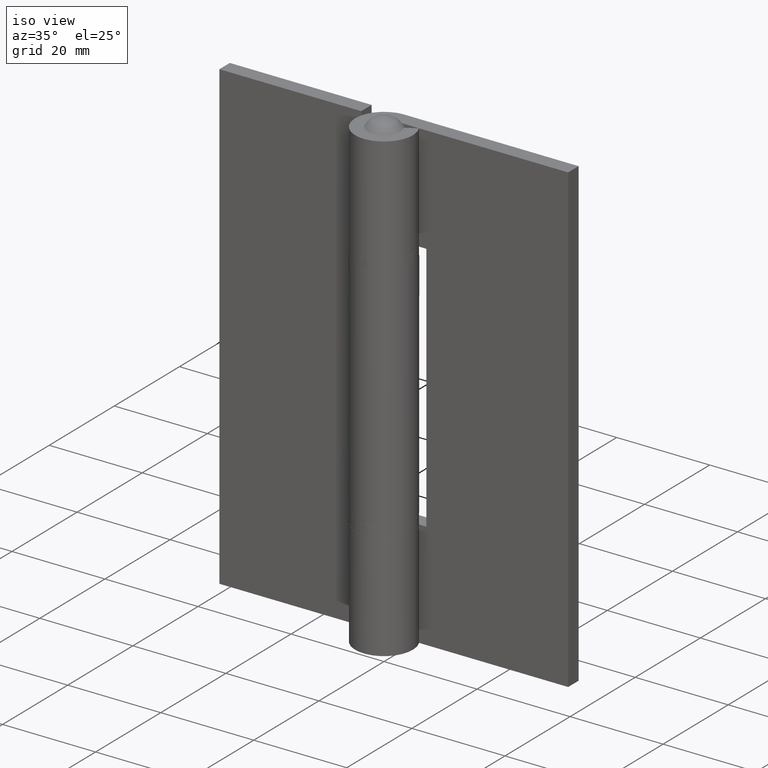
[diagram: clean part render]
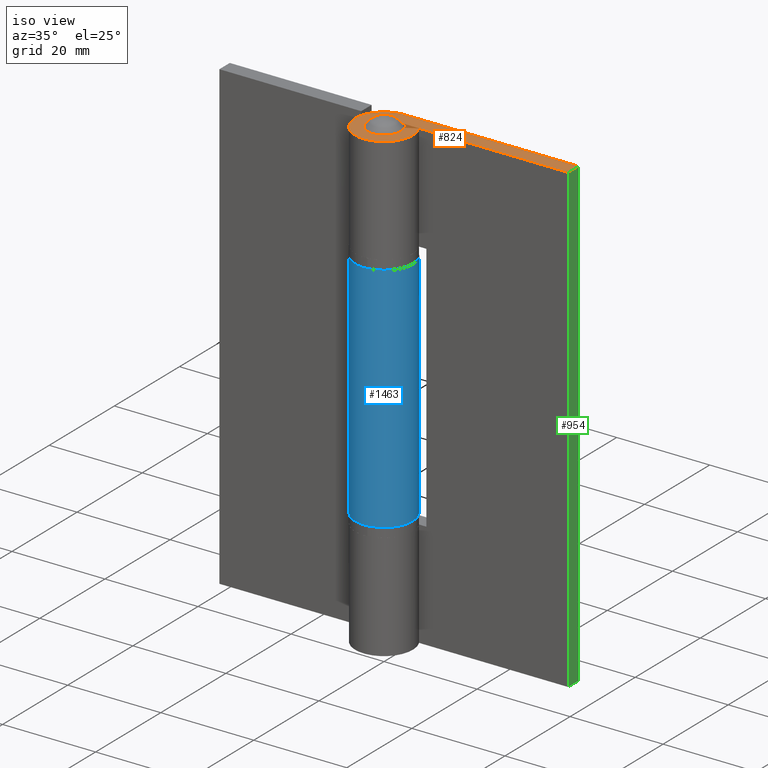
[diagram: same view with three faces highlighted in distinct colors, each labeled with its STEP entity id]
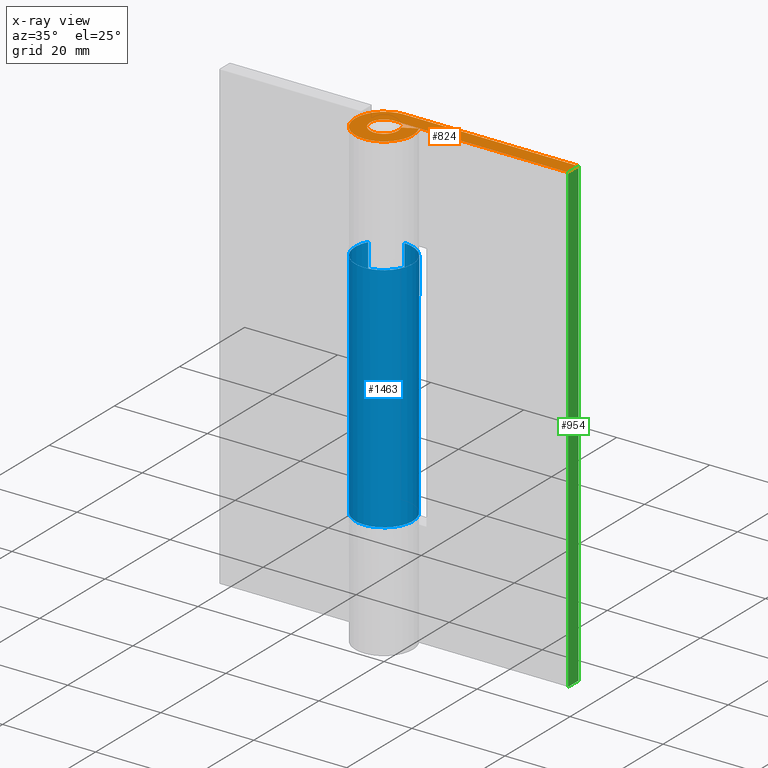
[diagram: x-ray of the same camera — body ghosted, the three highlighted faces saturated]
A machine part, iso view with three faces highlighted in distinct colors.
The next image is the same camera in x-ray (body ghosted, the three faces saturated) — at least one of them is partly hidden behind the body in this view.
Their STEP definitions:

[orange] entity #824 — the highlighted face is a freeform B-spline surface patch.
#747=CARTESIAN_POINT('',(-8.382590923544630,-6.818480594512550,100.0));
#748=CARTESIAN_POINT('',(39.682812764321689,-6.818480594512550,100.0));
#749=CARTESIAN_POINT('',(-8.382590923544630,6.819337640167641,100.0));
#750=CARTESIAN_POINT('',(39.682812764321689,6.819337640167642,100.0));
#751=B_SPLINE_SURFACE_WITH_KNOTS('',1,1,((#747,#749),(#748,#750)),.UNSPECIFIED.,.F.,.F.,.U.,(2,2),(2,2),(0.0,48.065403687866322),(0.0,13.637818234680189),.UNSPECIFIED.);
#752=CARTESIAN_POINT('',(-1.138884E-015,6.200001000000000,100.0));
#753=VERTEX_POINT('',#752);
#754=CARTESIAN_POINT('',(37.500006999999997,6.200001000000000,100.0));
#755=VERTEX_POINT('',#754);
#756=CARTESIAN_POINT('',(-1.138884E-015,6.200001000000000,100.0));
#757=CARTESIAN_POINT('',(37.500006999999997,6.200001000000000,100.0));
#758=QUASI_UNIFORM_CURVE('',1,(#756,#757),.UNSPECIFIED.,.F.,.U.);
#759=EDGE_CURVE('',#753,#755,#758,.T.);
#760=ORIENTED_EDGE('',*,*,#759,.F.);
#761=CARTESIAN_POINT('',(5.453210063806460,2.950000000000000,100.0));
#762=VERTEX_POINT('',#761);
#763=CARTESIAN_POINT('',(5.453210063806460,2.950000000000000,100.0));
#764=CARTESIAN_POINT('',(7.700629818115628,-1.204456210778381,100.0));
#765=CARTESIAN_POINT('',(4.291983680182778,-4.474247253901567,100.0));
#766=CARTESIAN_POINT('',(0.883337542249927,-7.744038297024753,100.0));
#767=CARTESIAN_POINT('',(-3.174114561574654,-5.325881067954930,100.0));
#768=CARTESIAN_POINT('',(-7.231566665399238,-2.907723838885107,100.0));
#769=CARTESIAN_POINT('',(-5.977477743463484,1.646138580557450,100.0));
#770=CARTESIAN_POINT('',(-4.723388821527732,6.200001000000000,100.0));
#771=CARTESIAN_POINT('',(0.0,6.200001000000000,100.0));
#779=(BOUNDED_CURVE()B_SPLINE_CURVE(2,(#763,#764,#765,#766,#767,#768,#769,#770,#771),.UNSPECIFIED.,.F.,.U.)B_SPLINE_CURVE_WITH_KNOTS((3,2,2,2,3),(0.0,0.250000000000000,0.500000000000000,0.750000000000000,1.0),.UNSPECIFIED.)CURVE()GEOMETRIC_REPRESENTATION_ITEM()RATIONAL_B_SPLINE_CURVE((1.0,0.795457786386864,1.0,0.795457786386864,1.0,0.795457786386864,1.0,0.795457786386864,1.0))REPRESENTATION_ITEM(''));
#780=EDGE_CURVE('',#762,#753,#779,.T.);
#781=ORIENTED_EDGE('',*,*,#780,.F.);
#782=CARTESIAN_POINT('',(2.638650030874090,1.427419354838710,100.0));
#783=VERTEX_POINT('',#782);
#784=CARTESIAN_POINT('',(2.638650030874090,1.427419354838710,100.0));
#785=CARTESIAN_POINT('',(5.453210063806460,2.950000000000000,100.0));
#786=QUASI_UNIFORM_CURVE('',1,(#784,#785),.UNSPECIFIED.,.F.,.U.);
#787=EDGE_CURVE('',#783,#762,#786,.T.);
#788=ORIENTED_EDGE('',*,*,#787,.F.);
#789=CARTESIAN_POINT('',(2.220446E-016,3.0,100.0));
#790=VERTEX_POINT('',#789);
#791=CARTESIAN_POINT('',(2.638650030874091,1.427419354838712,100.0));
#792=CARTESIAN_POINT('',(3.726110601328433,-0.582801298311906,100.0));
#793=CARTESIAN_POINT('',(2.076765961900384,-2.164957999475272,100.0));
#794=CARTESIAN_POINT('',(0.427421322472334,-3.747114700638639,100.0));
#795=CARTESIAN_POINT('',(-1.535861636913278,-2.577038810778384,100.0));
#796=CARTESIAN_POINT('',(-3.499144596298891,-1.406962920918129,100.0));
#797=CARTESIAN_POINT('',(-2.892327473881125,0.796518539540937,100.0));
#798=CARTESIAN_POINT('',(-2.285510351463362,3.000000000000000,100.0));
#799=CARTESIAN_POINT('',(0.0,3.0,100.0));
#807=(BOUNDED_CURVE()B_SPLINE_CURVE(2,(#791,#792,#793,#794,#795,#796,#797,#798,#799),.UNSPECIFIED.,.F.,.U.)B_SPLINE_CURVE_WITH_KNOTS((3,2,2,2,3),(0.0,0.250000000000000,0.500000000000000,0.750000000000000,1.0),.UNSPECIFIED.)CURVE()GEOMETRIC_REPRESENTATION_ITEM()RATIONAL_B_SPLINE_CURVE((1.0,0.795457786386864,1.0,0.795457786386864,1.0,0.795457786386864,1.0,0.795457786386864,1.0))REPRESENTATION_ITEM(''));
#808=EDGE_CURVE('',#783,#790,#807,.T.);
#809=ORIENTED_EDGE('',*,*,#808,.T.);
#810=CARTESIAN_POINT('',(37.500006999999997,3.0,100.0));
#811=VERTEX_POINT('',#810);
#812=CARTESIAN_POINT('',(37.500006999999997,3.0,100.0));
#813=CARTESIAN_POINT('',(2.220446E-016,3.0,100.0));
#814=QUASI_UNIFORM_CURVE('',1,(#812,#813),.UNSPECIFIED.,.F.,.U.);
#815=EDGE_CURVE('',#811,#790,#814,.T.);
#816=ORIENTED_EDGE('',*,*,#815,.F.);
#817=CARTESIAN_POINT('',(37.500006999999997,6.200001000000000,100.0));
#818=CARTESIAN_POINT('',(37.500006999999997,3.0,100.0));
#819=QUASI_UNIFORM_CURVE('',1,(#817,#818),.UNSPECIFIED.,.F.,.U.);
#820=EDGE_CURVE('',#755,#811,#819,.T.);
#821=ORIENTED_EDGE('',*,*,#820,.F.);
#822=EDGE_LOOP('',(#760,#781,#788,#809,#816,#821));
#823=FACE_OUTER_BOUND('',#822,.T.);
#824=ADVANCED_FACE('',(#823),#751,.T.);

[blue] entity #1463 — the highlighted face is a freeform B-spline surface patch.
#1095=CARTESIAN_POINT('',(0.0,6.200001000000000,25.0));
#1096=VERTEX_POINT('',#1095);
#1097=CARTESIAN_POINT('',(-5.453210943356470,2.950000475806455,25.0));
#1098=VERTEX_POINT('',#1097);
#1099=CARTESIAN_POINT('',(0.0,6.200001000000000,25.0));
#1100=CARTESIAN_POINT('',(4.723388821527733,6.200000999999999,25.000000000000007));
#1101=CARTESIAN_POINT('',(5.977477743463485,1.646138580557449,25.0));
#1102=CARTESIAN_POINT('',(7.231566665399235,-2.907723838885105,25.000000000000007));
#1103=CARTESIAN_POINT('',(3.174114561574657,-5.325881067954929,25.0));
#1104=CARTESIAN_POINT('',(-0.883337542249925,-7.744038297024754,25.000000000000007));
#1105=CARTESIAN_POINT('',(-4.291983680182779,-4.474247253901565,25.0));
#1106=CARTESIAN_POINT('',(-7.700629818115626,-1.204456210778380,25.000000000000007));
#1107=CARTESIAN_POINT('',(-5.453210943356468,2.950000475806447,25.0));
#1115=(BOUNDED_CURVE()B_SPLINE_CURVE(2,(#1099,#1100,#1101,#1102,#1103,#1104,#1105,#1106,#1107),.UNSPECIFIED.,.F.,.U.)B_SPLINE_CURVE_WITH_KNOTS((3,2,2,2,3),(0.0,0.250000000000000,0.500000000000000,0.750000000000000,1.0),.UNSPECIFIED.)CURVE()GEOMETRIC_REPRESENTATION_ITEM()RATIONAL_B_SPLINE_CURVE((1.0,0.795457786386864,1.0,0.795457786386864,1.0,0.795457786386864,1.0,0.795457786386864,1.0))REPRESENTATION_ITEM(''));
#1116=EDGE_CURVE('',#1096,#1098,#1115,.T.);
#1201=CARTESIAN_POINT('',(-5.453210943356470,2.950000475806455,75.0));
#1202=VERTEX_POINT('',#1201);
#1203=CARTESIAN_POINT('',(0.0,6.200001000000000,75.0));
#1204=VERTEX_POINT('',#1203);
#1205=CARTESIAN_POINT('',(-5.453210943356464,2.950000475806455,75.0));
#1206=CARTESIAN_POINT('',(-7.700629818115631,-1.204456210778373,75.0));
#1207=CARTESIAN_POINT('',(-4.291983680182781,-4.474247253901562,75.0));
#1208=CARTESIAN_POINT('',(-0.883337542249930,-7.744038297024754,75.0));
#1209=CARTESIAN_POINT('',(3.174114561574654,-5.325881067954930,75.0));
#1210=CARTESIAN_POINT('',(7.231566665399239,-2.907723838885107,75.0));
#1211=CARTESIAN_POINT('',(5.977477743463484,1.646138580557450,75.0));
#1212=CARTESIAN_POINT('',(4.723388821527731,6.200000999999999,75.0));
#1213=CARTESIAN_POINT('',(0.0,6.200001000000000,75.0));
#1221=(BOUNDED_CURVE()B_SPLINE_CURVE(2,(#1205,#1206,#1207,#1208,#1209,#1210,#1211,#1212,#1213),.UNSPECIFIED.,.F.,.U.)B_SPLINE_CURVE_WITH_KNOTS((3,2,2,2,3),(0.0,0.250000000000000,0.500000000000000,0.750000000000000,1.0),.UNSPECIFIED.)CURVE()GEOMETRIC_REPRESENTATION_ITEM()RATIONAL_B_SPLINE_CURVE((1.0,0.795457786386864,1.0,0.795457786386864,1.0,0.795457786386864,1.0,0.795457786386864,1.0))REPRESENTATION_ITEM(''));
#1222=EDGE_CURVE('',#1202,#1204,#1221,.T.);
#1421=CARTESIAN_POINT('',(-5.453210943356470,2.950000475806455,75.0));
#1422=CARTESIAN_POINT('',(-5.453210943356470,2.950000475806455,25.0));
#1423=QUASI_UNIFORM_CURVE('',1,(#1421,#1422),.UNSPECIFIED.,.F.,.U.);
#1424=EDGE_CURVE('',#1202,#1098,#1423,.T.);
#1431=CARTESIAN_POINT('',(-5.342101656366618,3.146738357894728,76.250000000000014));
#1432=CARTESIAN_POINT('',(-5.342101656366618,3.146738357894728,23.718750000000000));
#1433=CARTESIAN_POINT('',(-9.204970269507784,-3.411111221437349,76.250000000000014));
#1434=CARTESIAN_POINT('',(-9.204970269507784,-3.411111221437349,23.718749999999996));
#1435=CARTESIAN_POINT('',(-2.001461871852716,-5.868062949178442,76.250000000000014));
#1436=CARTESIAN_POINT('',(-2.001461871852716,-5.868062949178442,23.718750000000000));
#1437=CARTESIAN_POINT('',(5.202046525802353,-8.325014676919537,76.250000000000014));
#1438=CARTESIAN_POINT('',(5.202046525802353,-8.325014676919537,23.718749999999996));
#1439=CARTESIAN_POINT('',(6.151563178049004,-0.773487470145839,76.250000000000014));
#1440=CARTESIAN_POINT('',(6.151563178049004,-0.773487470145839,23.718750000000000));
#1441=CARTESIAN_POINT('',(7.101079830295656,6.778039736627860,76.250000000000014));
#1442=CARTESIAN_POINT('',(7.101079830295656,6.778039736627860,23.718749999999996));
#1443=CARTESIAN_POINT('',(-0.486446471971738,6.180888466062726,76.250000000000014));
#1444=CARTESIAN_POINT('',(-0.486446471971738,6.180888466062726,23.718750000000000));
#1452=(BOUNDED_SURFACE()B_SPLINE_SURFACE(1,2,((#1431,#1433,#1435,#1437,#1439,#1441,#1443),(#1432,#1434,#1436,#1438,#1440,#1442,#1444)),.UNSPECIFIED.,.F.,.F.,.U.)B_SPLINE_SURFACE_WITH_KNOTS((2,2),(3,2,2,3),(0.0,52.531250000000007),(0.0,11.784749476774421,23.569498953548841,35.354248430323260),.UNSPECIFIED.)GEOMETRIC_REPRESENTATION_ITEM()RATIONAL_B_SPLINE_SURFACE(((1.0,0.631578351302498,1.0,0.631578351302498,1.0,0.631578351302498,1.0),(1.0,0.631578351302498,1.0,0.631578351302498,1.0,0.631578351302498,1.0)))REPRESENTATION_ITEM('')SURFACE());
#1453=ORIENTED_EDGE('',*,*,#1424,.T.);
#1454=ORIENTED_EDGE('',*,*,#1116,.F.);
#1455=CARTESIAN_POINT('',(0.0,6.200001000000000,75.0));
#1456=CARTESIAN_POINT('',(0.0,6.200001000000000,25.0));
#1457=QUASI_UNIFORM_CURVE('',1,(#1455,#1456),.UNSPECIFIED.,.F.,.U.);
#1458=EDGE_CURVE('',#1204,#1096,#1457,.T.);
#1459=ORIENTED_EDGE('',*,*,#1458,.F.);
#1460=ORIENTED_EDGE('',*,*,#1222,.F.);
#1461=EDGE_LOOP('',(#1453,#1454,#1459,#1460));
#1462=FACE_OUTER_BOUND('',#1461,.T.);
#1463=ADVANCED_FACE('',(#1462),#1452,.T.);

[green] entity #954 — the highlighted face is a freeform B-spline surface patch.
#676=CARTESIAN_POINT('',(37.500006999999997,6.200001000000000,0.0));
#677=VERTEX_POINT('',#676);
#683=CARTESIAN_POINT('',(37.500006999999997,3.0,0.0));
#684=VERTEX_POINT('',#683);
#685=CARTESIAN_POINT('',(37.500006999999997,6.200001000000000,0.0));
#686=CARTESIAN_POINT('',(37.500006999999997,3.0,0.0));
#687=QUASI_UNIFORM_CURVE('',1,(#685,#686),.UNSPECIFIED.,.F.,.U.);
#688=EDGE_CURVE('',#677,#684,#687,.T.);
#754=CARTESIAN_POINT('',(37.500006999999997,6.200001000000000,100.0));
#755=VERTEX_POINT('',#754);
#810=CARTESIAN_POINT('',(37.500006999999997,3.0,100.0));
#811=VERTEX_POINT('',#810);
#817=CARTESIAN_POINT('',(37.500006999999997,6.200001000000000,100.0));
#818=CARTESIAN_POINT('',(37.500006999999997,3.0,100.0));
#819=QUASI_UNIFORM_CURVE('',1,(#817,#818),.UNSPECIFIED.,.F.,.U.);
#820=EDGE_CURVE('',#755,#811,#819,.T.);
#925=CARTESIAN_POINT('',(37.500006999999997,3.0,100.0));
#926=CARTESIAN_POINT('',(37.500006999999997,3.0,0.0));
#927=QUASI_UNIFORM_CURVE('',1,(#925,#926),.UNSPECIFIED.,.F.,.U.);
#928=EDGE_CURVE('',#811,#684,#927,.T.);
#939=CARTESIAN_POINT('',(37.500006999999997,2.840159967684873,104.994999806180600));
#940=CARTESIAN_POINT('',(37.500006999999997,2.840159967684873,-4.995002488389611));
#941=CARTESIAN_POINT('',(37.500006999999997,6.359840889263936,104.994999806180600));
#942=CARTESIAN_POINT('',(37.500006999999997,6.359840889263936,-4.995002488389611));
#943=B_SPLINE_SURFACE_WITH_KNOTS('',1,1,((#939,#941),(#940,#942)),.UNSPECIFIED.,.F.,.F.,.U.,(2,2),(2,2),(0.0,109.990002294570200),(0.0,3.519680921579062),.UNSPECIFIED.);
#944=ORIENTED_EDGE('',*,*,#688,.F.);
#945=CARTESIAN_POINT('',(37.500006999999997,6.200001000000000,100.0));
#946=CARTESIAN_POINT('',(37.500006999999997,6.200001000000000,0.0));
#947=QUASI_UNIFORM_CURVE('',1,(#945,#946),.UNSPECIFIED.,.F.,.U.);
#948=EDGE_CURVE('',#755,#677,#947,.T.);
#949=ORIENTED_EDGE('',*,*,#948,.F.);
#950=ORIENTED_EDGE('',*,*,#820,.T.);
#951=ORIENTED_EDGE('',*,*,#928,.T.);
#952=EDGE_LOOP('',(#944,#949,#950,#951));
#953=FACE_OUTER_BOUND('',#952,.T.);
#954=ADVANCED_FACE('',(#953),#943,.T.);